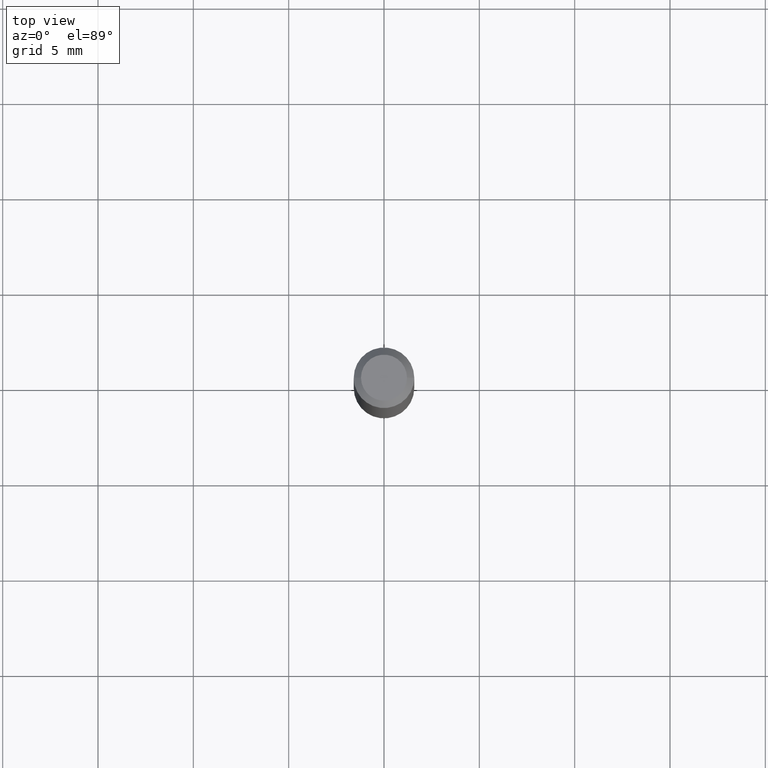
[diagram: clean part render]
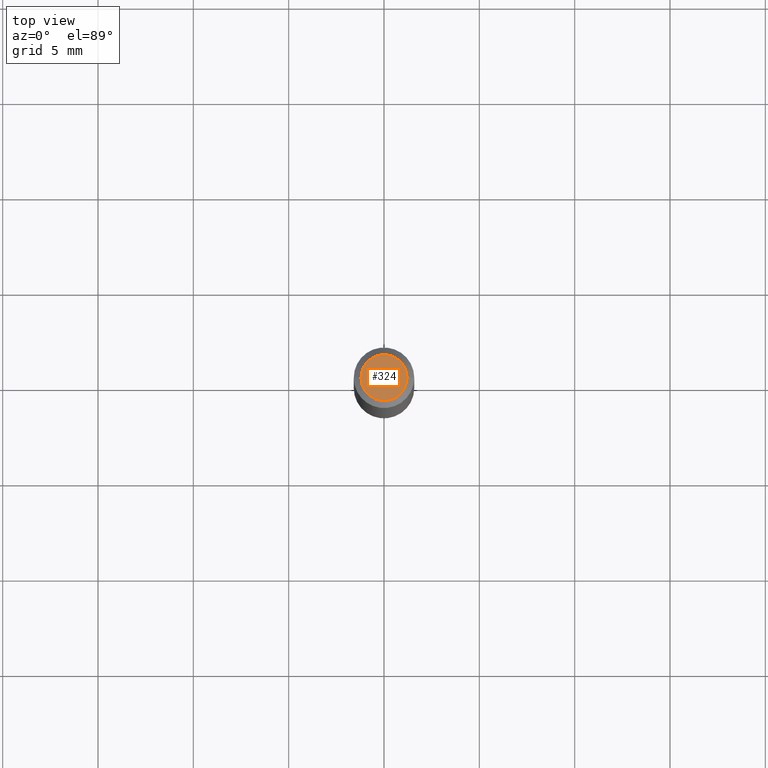
[diagram: same view with one face highlighted and labeled with its STEP entity id]
A machine part, top view. The second image highlights one B-rep face of the part: STEP entity #324.
In plain terms, the highlighted planar face has unit normal (0, -0, -1).
Its self-contained STEP definition (entity closure, byte-faithful):
#6 = ORIENTED_EDGE ( 'NONE', *, *, #403, .T. ) ;
#36 = AXIS2_PLACEMENT_3D ( 'NONE', #350, #484, #125 ) ;
#42 = EDGE_LOOP ( 'NONE', ( #63, #6 ) ) ;
#61 = DIRECTION ( 'NONE',  ( 1.000000000000000000, -6.982962677686266711E-15, 4.852736867747365086E-29 ) ) ;
#63 = ORIENTED_EDGE ( 'NONE', *, *, #271, .T. ) ;
#82 = VERTEX_POINT ( 'NONE', #481 ) ;
#85 = DIRECTION ( 'NONE',  ( 2.438088387897960049E-29, -3.491481338843145188E-15, -1.000000000000000000 ) ) ;
#93 = VERTEX_POINT ( 'NONE', #136 ) ;
#100 = CARTESIAN_POINT ( 'NONE',  ( -6.680649051745406845E-45, 9.538196290434862081E-31, 2.731847993664263218E-16 ) ) ;
#125 = DIRECTION ( 'NONE',  ( 1.000000000000000000, -6.982962677686266711E-15, 4.852736867747365086E-29 ) ) ;
#136 = CARTESIAN_POINT ( 'NONE',  ( -0.04750000000000000749, 3.578768372314221353E-16, 2.731847993664239060E-16 ) ) ;
#156 = FACE_OUTER_BOUND ( 'NONE', #42, .T. ) ;
#182 = AXIS2_PLACEMENT_3D ( 'NONE', #100, #185, #61 ) ;
#185 = DIRECTION ( 'NONE',  ( -2.445468806185136597E-29, 3.491481338843145583E-15, 1.000000000000000000 ) ) ;
#204 = CIRCLE ( 'NONE', #36, 0.04750000000000000749 ) ;
#216 = AXIS2_PLACEMENT_3D ( 'NONE', #433, #85, #482 ) ;
#241 = PLANE ( 'NONE',  #216 ) ;
#271 = EDGE_CURVE ( 'NONE', #93, #82, #204, .T. ) ;
#324 = ADVANCED_FACE ( 'NONE', ( #156 ), #241, .F. ) ;
#350 = CARTESIAN_POINT ( 'NONE',  ( -6.680649051745406845E-45, 9.538196290434862081E-31, 2.731847993664263218E-16 ) ) ;
#368 = CIRCLE ( 'NONE', #182, 0.04750000000000000749 ) ;
#403 = EDGE_CURVE ( 'NONE', #82, #93, #368, .T. ) ;
#433 = CARTESIAN_POINT ( 'NONE',  ( 3.316907271900976589E-16, 0.04750000000000000749, -2.925296391183627249E-17 ) ) ;
#481 = CARTESIAN_POINT ( 'NONE',  ( 0.04750000000000000749, -4.035134999187568762E-16, 2.731847993664288856E-16 ) ) ;
#482 = DIRECTION ( 'NONE',  ( -1.000000000000000000, 6.982962677686265922E-15, -4.876176775795935793E-29 ) ) ;
#484 = DIRECTION ( 'NONE',  ( -2.445468806185136597E-29, 3.491481338843145583E-15, 1.000000000000000000 ) ) ;